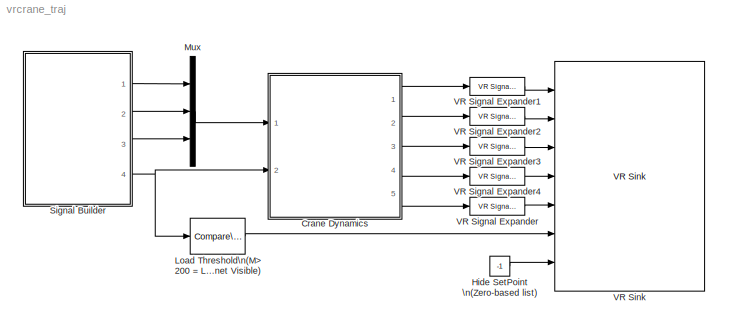
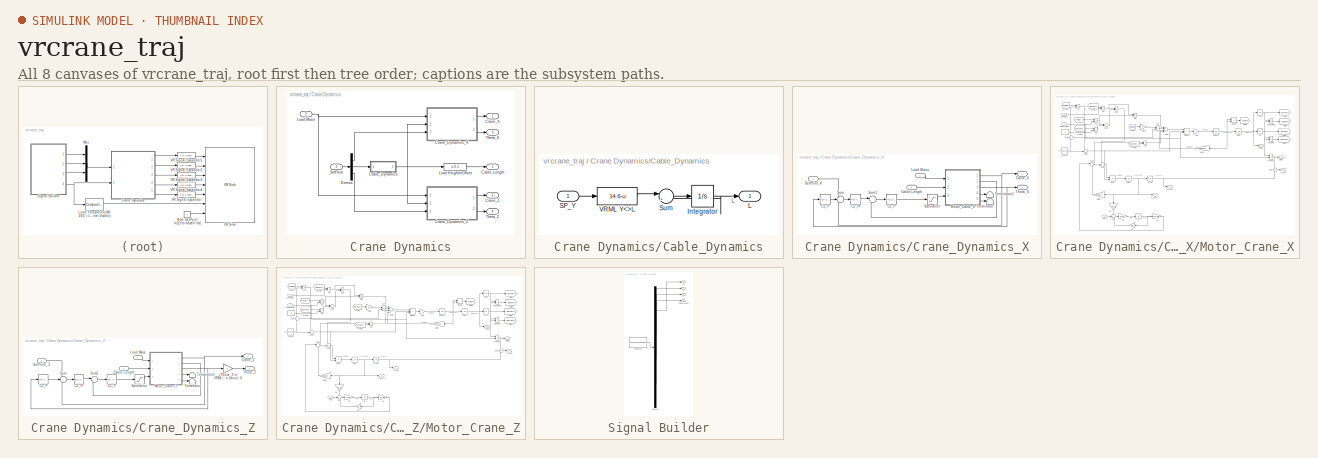
[diagram: thumbnail index - all 8 canvases of the model, root first then tree order]
MODEL vrcrane_traj
KIND model
CONFIG PostLoadFcn = Ra=2.6;\nLa=0.012;\nB=1e-1;\nKt=1e2;\nKv=3e-2;\nKg=1e-3;\nJ=0.1;\ng=9.80665;\nm_head=100;\nGamma=10;
BLOCK [SubSystem] Crane Dynamics
  EnableExecutionContextPropagation = on
  MinAlgLoopOccurrences = off
  Ports = [2, 5]
  TreatAsAtomicUnit = off
BLOCK [SubSystem] Crane Dynamics/Cable_Dynamics
  EnableExecutionContextPropagation = on
  MinAlgLoopOccurrences = off
  Ports = [1, 1]
  TreatAsAtomicUnit = off
BLOCK [Integrator] Crane Dynamics/Cable_Dynamics/Integrator
  InitialCondition = 14.6
  LimitOutput = on
  LowerSaturationLimit = 4.6
  Ports = [1, 1]
  UpperSaturationLimit = 14.6
BLOCK [Outport] Crane Dynamics/Cable_Dynamics/L
  BusOutputAsStruct = off
  IconDisplay = Port number
BLOCK [Inport] Crane Dynamics/Cable_Dynamics/SP_Y
  IconDisplay = Port number
  LatchInput = off
BLOCK [Sum] Crane Dynamics/Cable_Dynamics/Sum
  IconShape = round
  InputSameDT = off
  Inputs = |+-
  OutDataTypeMode = Inherit via internal rule
  Ports = [2, 1]
  SaturateOnIntegerOverflow = off
BLOCK [Fcn] Crane Dynamics/Cable_Dynamics/VRML Y<>L
  Expr = 14.6-u
BLOCK [Outport] Crane Dynamics/Cable_Length
  BusOutputAsStruct = off
  IconDisplay = Port number
  Port = 5
BLOCK [SubSystem] Crane Dynamics/Crane_Dynamics_X
  EnableExecutionContextPropagation = on
  MinAlgLoopOccurrences = off
  Ports = [3, 2]
  TreatAsAtomicUnit = off
BLOCK [Reference] Crane Dynamics/Crane_Dynamics_X/C1_P  REF=simulink_extras/Additional\nLinear/PID Controller
  D = 0
  I = 0
  P = -20
  Ports = [1, 1]
  ShowPortLabels = on
  SourceBlock = simulink_extras/Additional\nLinear/PID Controller
  SourceType = PID Controller
BLOCK [Reference] Crane Dynamics/Crane_Dynamics_X/C2_PI  REF=simulink_extras/Additional\nLinear/PID Controller
  D = 0
  I = 0
  P = 2.5
  Ports = [1, 1]
  ShowPortLabels = on
  SourceBlock = simulink_extras/Additional\nLinear/PID Controller
  SourceType = PID Controller
BLOCK [Reference] Crane Dynamics/Crane_Dynamics_X/C3_P  REF=simulink_extras/Additional\nLinear/PID Controller
  D = 0
  I = 0
  P = 5
  Ports = [1, 1]
  ShowPortLabels = on
  SourceBlock = simulink_extras/Additional\nLinear/PID Controller
  SourceType = PID Controller
BLOCK [Inport] Crane Dynamics/Crane_Dynamics_X/Cable Length
  IconDisplay = Port number
  LatchInput = off
  Port = 2
BLOCK [Outport] Crane Dynamics/Crane_Dynamics_X/Crane_X
  BusOutputAsStruct = off
  IconDisplay = Port number
BLOCK [Inport] Crane Dynamics/Crane_Dynamics_X/Load Mass
  IconDisplay = Port number
  LatchInput = off
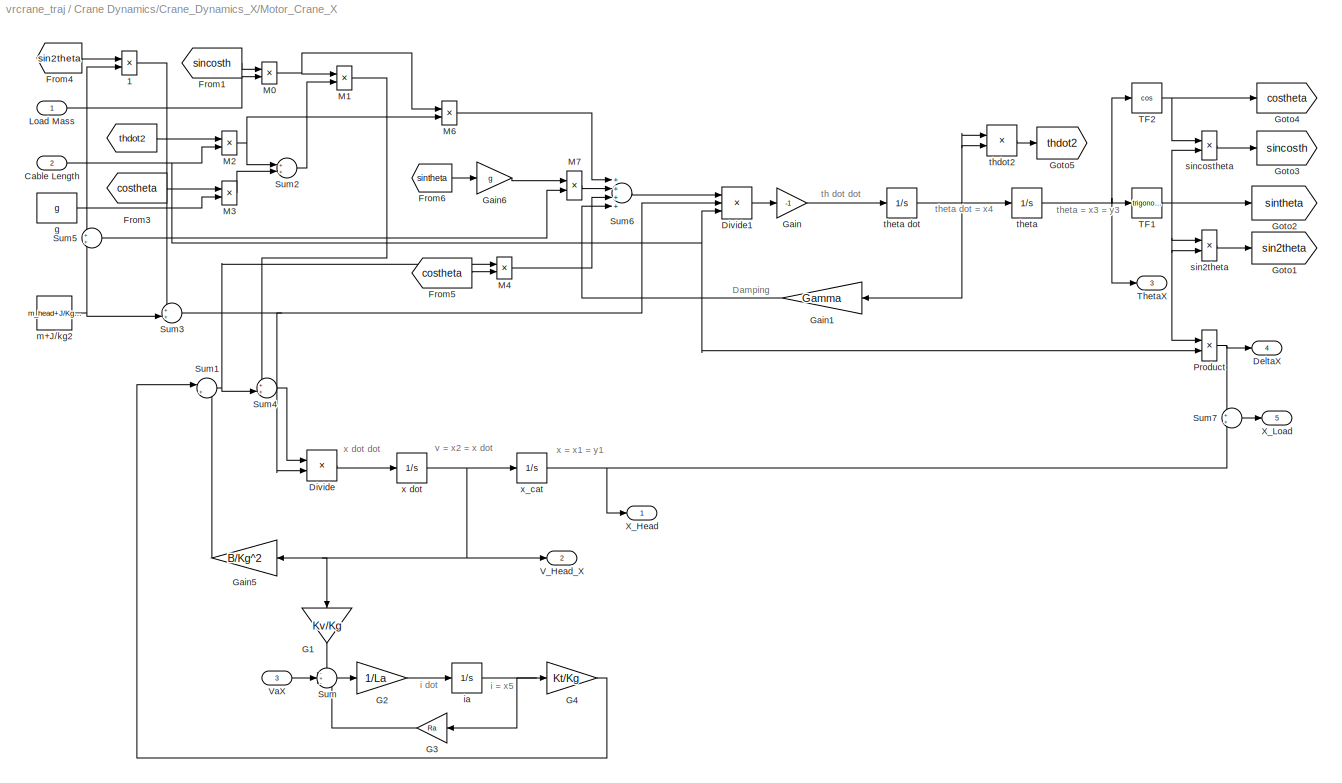
BLOCK [SubSystem] Crane Dynamics/Crane_Dynamics_X/Motor_Crane_X
  EnableExecutionContextPropagation = on
  MinAlgLoopOccurrences = off
  Ports = [3, 5]
  TreatAsAtomicUnit = off
BLOCK [From] Crane Dynamics/Crane_Dynamics_X/Motor_Crane_X/ 
  CloseFcn = tagdialog Close
  DialogController = Simulink.DDGSource
  GotoTag = thdot2
BLOCK [Product] Crane Dynamics/Crane_Dynamics_X/Motor_Crane_X/ 1
  InputSameDT = off
  Inputs = **
  OutDataTypeMode = Inherit via internal rule
  OutScaling = 2^-10
  Ports = [2, 1]
  RndMeth = Floor
  SaturateOnIntegerOverflow = off
BLOCK [Inport] Crane Dynamics/Crane_Dynamics_X/Motor_Crane_X/Cable Length
  IconDisplay = Port number
  LatchInput = off
  Port = 2
BLOCK [Outport] Crane Dynamics/Crane_Dynamics_X/Motor_Crane_X/DeltaX
  BusOutputAsStruct = off
  IconDisplay = Port number
  Port = 4
BLOCK [Product] Crane Dynamics/Crane_Dynamics_X/Motor_Crane_X/Divide
  InputSameDT = off
  Inputs = */
  OutDataTypeMode = Inherit via internal rule
  OutScaling = 2^-10
  Ports = [2, 1]
  RndMeth = Floor
  SaturateOnIntegerOverflow = off
BLOCK [Product] Crane Dynamics/Crane_Dynamics_X/Motor_Crane_X/Divide1
  InputSameDT = off
  Inputs = *//
  OutDataTypeMode = Inherit via internal rule
  OutScaling = 2^-10
  Ports = [3, 1]
  RndMeth = Floor
  SaturateOnIntegerOverflow = off
BLOCK [From] Crane Dynamics/Crane_Dynamics_X/Motor_Crane_X/From1
  CloseFcn = tagdialog Close
  DialogController = Simulink.DDGSource
  GotoTag = sincosth
BLOCK [From] Crane Dynamics/Crane_Dynamics_X/Motor_Crane_X/From3
  CloseFcn = tagdialog Close
  DialogController = Simulink.DDGSource
  GotoTag = costheta
BLOCK [From] Crane Dynamics/Crane_Dynamics_X/Motor_Crane_X/From4
  CloseFcn = tagdialog Close
  DialogController = Simulink.DDGSource
  GotoTag = sin2theta
BLOCK [From] Crane Dynamics/Crane_Dynamics_X/Motor_Crane_X/From5
  CloseFcn = tagdialog Close
  DialogController = Simulink.DDGSource
  GotoTag = costheta
BLOCK [From] Crane Dynamics/Crane_Dynamics_X/Motor_Crane_X/From6
  CloseFcn = tagdialog Close
  DialogController = Simulink.DDGSource
  GotoTag = sintheta
BLOCK [Gain] Crane Dynamics/Crane_Dynamics_X/Motor_Crane_X/G1
  Gain = Kv/Kg
  OutDataTypeMode = Inherit via internal rule
  ParameterDataTypeMode = Inherit via internal rule
  SaturateOnIntegerOverflow = off
BLOCK [Gain] Crane Dynamics/Crane_Dynamics_X/Motor_Crane_X/G2
  Gain = 1/La
  OutDataTypeMode = Inherit via internal rule
  ParameterDataTypeMode = Inherit via internal rule
  SaturateOnIntegerOverflow = off
BLOCK [Gain] Crane Dynamics/Crane_Dynamics_X/Motor_Crane_X/G3
  Gain = Ra
  OutDataTypeMode = Inherit via internal rule
  ParameterDataTypeMode = Inherit via internal rule
  SaturateOnIntegerOverflow = off
BLOCK [Gain] Crane Dynamics/Crane_Dynamics_X/Motor_Crane_X/G4
  Gain = Kt/Kg
  OutDataTypeMode = Inherit via internal rule
  ParameterDataTypeMode = Inherit via internal rule
  SaturateOnIntegerOverflow = off
BLOCK [Gain] Crane Dynamics/Crane_Dynamics_X/Motor_Crane_X/Gain
  Gain = -1
  OutDataTypeMode = Inherit via internal rule
  ParameterDataTypeMode = Inherit via internal rule
  SaturateOnIntegerOverflow = off
BLOCK [Gain] Crane Dynamics/Crane_Dynamics_X/Motor_Crane_X/Gain1
  Gain = Gamma
  OutDataTypeMode = Inherit via internal rule
  ParameterDataTypeMode = Inherit via internal rule
  SaturateOnIntegerOverflow = off
BLOCK [Gain] Crane Dynamics/Crane_Dynamics_X/Motor_Crane_X/Gain5
  Gain = B/Kg^2
  OutDataTypeMode = Inherit via internal rule
  ParameterDataTypeMode = Inherit via internal rule
  SaturateOnIntegerOverflow = off
BLOCK [Gain] Crane Dynamics/Crane_Dynamics_X/Motor_Crane_X/Gain6
  Gain = g
  OutDataTypeMode = Inherit via internal rule
  ParameterDataTypeMode = Inherit via internal rule
  SaturateOnIntegerOverflow = off
BLOCK [Goto] Crane Dynamics/Crane_Dynamics_X/Motor_Crane_X/Goto1
  DialogController = Simulink.DDGSource
  GotoTag = sin2theta
  TagVisibility = local
BLOCK [Goto] Crane Dynamics/Crane_Dynamics_X/Motor_Crane_X/Goto2
  DialogController = Simulink.DDGSource
  GotoTag = sintheta
  TagVisibility = local
BLOCK [Goto] Crane Dynamics/Crane_Dynamics_X/Motor_Crane_X/Goto3
  DialogController = Simulink.DDGSource
  GotoTag = sincosth
  TagVisibility = local
BLOCK [Goto] Crane Dynamics/Crane_Dynamics_X/Motor_Crane_X/Goto4
  DialogController = Simulink.DDGSource
  GotoTag = costheta
  TagVisibility = local
BLOCK [Goto] Crane Dynamics/Crane_Dynamics_X/Motor_Crane_X/Goto5
  DialogController = Simulink.DDGSource
  GotoTag = thdot2
  TagVisibility = local
BLOCK [Inport] Crane Dynamics/Crane_Dynamics_X/Motor_Crane_X/Load Mass
  IconDisplay = Port number
  LatchInput = off
BLOCK [Product] Crane Dynamics/Crane_Dynamics_X/Motor_Crane_X/M0
  InputSameDT = off
  Inputs = **
  OutDataTypeMode = Inherit via internal rule
  OutScaling = 2^-10
  Ports = [2, 1]
  RndMeth = Floor
  SaturateOnIntegerOverflow = off
BLOCK [Product] Crane Dynamics/Crane_Dynamics_X/Motor_Crane_X/M1
  InputSameDT = off
  Inputs = **
  OutDataTypeMode = Inherit via internal rule
  OutScaling = 2^-10
  Ports = [2, 1]
  RndMeth = Floor
  SaturateOnIntegerOverflow = off
BLOCK [Product] Crane Dynamics/Crane_Dynamics_X/Motor_Crane_X/M2
  InputSameDT = off
  Inputs = **
  OutDataTypeMode = Inherit via internal rule
  OutScaling = 2^-10
  Ports = [2, 1]
  RndMeth = Floor
  SaturateOnIntegerOverflow = off
BLOCK [Product] Crane Dynamics/Crane_Dynamics_X/Motor_Crane_X/M3
  InputSameDT = off
  Inputs = **
  OutDataTypeMode = Inherit via internal rule
  OutScaling = 2^-10
  Ports = [2, 1]
  RndMeth = Floor
  SaturateOnIntegerOverflow = off
BLOCK [Product] Crane Dynamics/Crane_Dynamics_X/Motor_Crane_X/M4
  InputSameDT = off
  Inputs = **
  OutDataTypeMode = Inherit via internal rule
  OutScaling = 2^-10
  Ports = [2, 1]
  RndMeth = Floor
  SaturateOnIntegerOverflow = off
BLOCK [Product] Crane Dynamics/Crane_Dynamics_X/Motor_Crane_X/M6
  InputSameDT = off
  Inputs = **
  OutDataTypeMode = Inherit via internal rule
  OutScaling = 2^-10
  Ports = [2, 1]
  RndMeth = Floor
  SaturateOnIntegerOverflow = off
BLOCK [Product] Crane Dynamics/Crane_Dynamics_X/Motor_Crane_X/M7
  InputSameDT = off
  Inputs = **
  OutDataTypeMode = Inherit via internal rule
  OutScaling = 2^-10
  Ports = [2, 1]
  RndMeth = Floor
  SaturateOnIntegerOverflow = off
BLOCK [Product] Crane Dynamics/Crane_Dynamics_X/Motor_Crane_X/Product
  InputSameDT = off
  Ports = [2, 1]
  RndMeth = Floor
BLOCK [Sum] Crane Dynamics/Crane_Dynamics_X/Motor_Crane_X/Sum
  IconShape = round
  InputSameDT = off
  Inputs = -+-
  OutDataTypeMode = Inherit via internal rule
  Ports = [3, 1]
  SaturateOnIntegerOverflow = off
BLOCK [Sum] Crane Dynamics/Crane_Dynamics_X/Motor_Crane_X/Sum1
  IconShape = round
  InputSameDT = off
  Inputs = |+-
  OutDataTypeMode = Inherit via internal rule
  Ports = [2, 1]
  SaturateOnIntegerOverflow = off
BLOCK [Sum] Crane Dynamics/Crane_Dynamics_X/Motor_Crane_X/Sum2
  IconShape = round
  InputSameDT = off
  OutDataTypeMode = Inherit via internal rule
  Ports = [2, 1]
  SaturateOnIntegerOverflow = off
BLOCK [Sum] Crane Dynamics/Crane_Dynamics_X/Motor_Crane_X/Sum3
  IconShape = round
  InputSameDT = off
  Inputs = ++|
  OutDataTypeMode = Inherit via internal rule
  Ports = [2, 1]
  SaturateOnIntegerOverflow = off
BLOCK [Sum] Crane Dynamics/Crane_Dynamics_X/Motor_Crane_X/Sum4
  IconShape = round
  InputSameDT = off
  Inputs = ++|
  OutDataTypeMode = Inherit via internal rule
  Ports = [2, 1]
  SaturateOnIntegerOverflow = off
BLOCK [Sum] Crane Dynamics/Crane_Dynamics_X/Motor_Crane_X/Sum5
  IconShape = round
  InputSameDT = off
  OutDataTypeMode = Inherit via internal rule
  Ports = [2, 1]
  SaturateOnIntegerOverflow = off
BLOCK [Sum] Crane Dynamics/Crane_Dynamics_X/Motor_Crane_X/Sum6
  InputSameDT = off
  Inputs = ++++
  OutDataTypeMode = Inherit via internal rule
  Ports = [4, 1]
  SaturateOnIntegerOverflow = off
BLOCK [Sum] Crane Dynamics/Crane_Dynamics_X/Motor_Crane_X/Sum7
  IconShape = round
  InputSameDT = off
  OutDataTypeMode = Inherit via internal rule
  Ports = [2, 1]
  SaturateOnIntegerOverflow = off
BLOCK [Trigonometry] Crane Dynamics/Crane_Dynamics_X/Motor_Crane_X/TF1
  Ports = [1, 1]
BLOCK [Trigonometry] Crane Dynamics/Crane_Dynamics_X/Motor_Crane_X/TF2
  Operator = cos
  Ports = [1, 1]
BLOCK [Outport] Crane Dynamics/Crane_Dynamics_X/Motor_Crane_X/ThetaX
  BusOutputAsStruct = off
  IconDisplay = Port number
  Port = 3
BLOCK [Outport] Crane Dynamics/Crane_Dynamics_X/Motor_Crane_X/V_Head_X
  BusOutputAsStruct = off
  IconDisplay = Port number
  Port = 2
BLOCK [Inport] Crane Dynamics/Crane_Dynamics_X/Motor_Crane_X/VaX
  IconDisplay = Port number
  LatchInput = off
  Port = 3
BLOCK [Outport] Crane Dynamics/Crane_Dynamics_X/Motor_Crane_X/X_Head
  BusOutputAsStruct = off
  IconDisplay = Port number
BLOCK [Outport] Crane Dynamics/Crane_Dynamics_X/Motor_Crane_X/X_Load
  BusOutputAsStruct = off
  IconDisplay = Port number
  Port = 5
BLOCK [Constant] Crane Dynamics/Crane_Dynamics_X/Motor_Crane_X/g
  Value = g
BLOCK [Integrator] Crane Dynamics/Crane_Dynamics_X/Motor_Crane_X/ia
  Ports = [1, 1]
BLOCK [Constant] Crane Dynamics/Crane_Dynamics_X/Motor_Crane_X/m+J//kg2
  Value = m_head+J/Kg^2
BLOCK [Product] Crane Dynamics/Crane_Dynamics_X/Motor_Crane_X/sin2theta
  InputSameDT = off
  Inputs = **
  OutDataTypeMode = Inherit via internal rule
  OutScaling = 2^-10
  Ports = [2, 1]
  RndMeth = Floor
  SaturateOnIntegerOverflow = off
BLOCK [Product] Crane Dynamics/Crane_Dynamics_X/Motor_Crane_X/sincostheta
  InputSameDT = off
  Inputs = **
  OutDataTypeMode = Inherit via internal rule
  OutScaling = 2^-10
  Ports = [2, 1]
  RndMeth = Floor
  SaturateOnIntegerOverflow = off
BLOCK [Product] Crane Dynamics/Crane_Dynamics_X/Motor_Crane_X/thdot2
  InputSameDT = off
  Inputs = **
  OutDataTypeMode = Inherit via internal rule
  OutScaling = 2^-10
  Ports = [2, 1]
  RndMeth = Floor
  SaturateOnIntegerOverflow = off
BLOCK [Integrator] Crane Dynamics/Crane_Dynamics_X/Motor_Crane_X/theta
  Ports = [1, 1]
BLOCK [Integrator] Crane Dynamics/Crane_Dynamics_X/Motor_Crane_X/theta dot
  Ports = [1, 1]
BLOCK [Integrator] Crane Dynamics/Crane_Dynamics_X/Motor_Crane_X/x dot
  Ports = [1, 1]
BLOCK [Integrator] Crane Dynamics/Crane_Dynamics_X/Motor_Crane_X/x_cat
  Ports = [1, 1]
BLOCK [Saturate] Crane Dynamics/Crane_Dynamics_X/Saturation
  LowerLimit = -50
  UpperLimit = 50
BLOCK [Inport] Crane Dynamics/Crane_Dynamics_X/SetPoint_X
  IconDisplay = Port number
  LatchInput = off
  Port = 3
BLOCK [Sum] Crane Dynamics/Crane_Dynamics_X/Sum
  IconShape = round
  Inputs = +--
  Ports = [3, 1]
BLOCK [Sum] Crane Dynamics/Crane_Dynamics_X/Sum1
  IconShape = round
  Inputs = |+-
  Ports = [2, 1]
BLOCK [Terminator] Crane Dynamics/Crane_Dynamics_X/Terminator
BLOCK [Terminator] Crane Dynamics/Crane_Dynamics_X/Terminator1
BLOCK [Outport] Crane Dynamics/Crane_Dynamics_X/Theta_X
  BusOutputAsStruct = off
  IconDisplay = Port number
  Port = 2
BLOCK [SubSystem] Crane Dynamics/Crane_Dynamics_Z
  EnableExecutionContextPropagation = on
  MinAlgLoopOccurrences = off
  Ports = [3, 2]
  TreatAsAtomicUnit = off
BLOCK [Gain] Crane Dynamics/Crane_Dynamics_Z/+Theta_Z in VRML\nrepresented by\nrotation about -X
  Gain = -1
  OutDataTypeMode = Inherit via internal rule
  ParameterDataTypeMode = Inherit via internal rule
  SaturateOnIntegerOverflow = off
BLOCK [Reference] Crane Dynamics/Crane_Dynamics_Z/C1_P  REF=simulink_extras/Additional\nLinear/PID Controller
  D = 0
  I = 0
  P = -20
  Ports = [1, 1]
  ShowPortLabels = on
  SourceBlock = simulink_extras/Additional\nLinear/PID Controller
  SourceType = PID Controller
BLOCK [Reference] Crane Dynamics/Crane_Dynamics_Z/C2_PI  REF=simulink_extras/Additional\nLinear/PID Controller
  D = 0
  I = 0
  P = 2.5
  Ports = [1, 1]
  ShowPortLabels = on
  SourceBlock = simulink_extras/Additional\nLinear/PID Controller
  SourceType = PID Controller
BLOCK [Reference] Crane Dynamics/Crane_Dynamics_Z/C3_P  REF=simulink_extras/Additional\nLinear/PID Controller
  D = 0
  I = 0
  P = 5
  Ports = [1, 1]
  ShowPortLabels = on
  SourceBlock = simulink_extras/Additional\nLinear/PID Controller
  SourceType = PID Controller
BLOCK [Inport] Crane Dynamics/Crane_Dynamics_Z/Cable Length
  IconDisplay = Port number
  LatchInput = off
  Port = 2
BLOCK [Outport] Crane Dynamics/Crane_Dynamics_Z/Crane_Z
  BusOutputAsStruct = off
  IconDisplay = Port number
BLOCK [Inport] Crane Dynamics/Crane_Dynamics_Z/Load Mass
  IconDisplay = Port number
  LatchInput = off
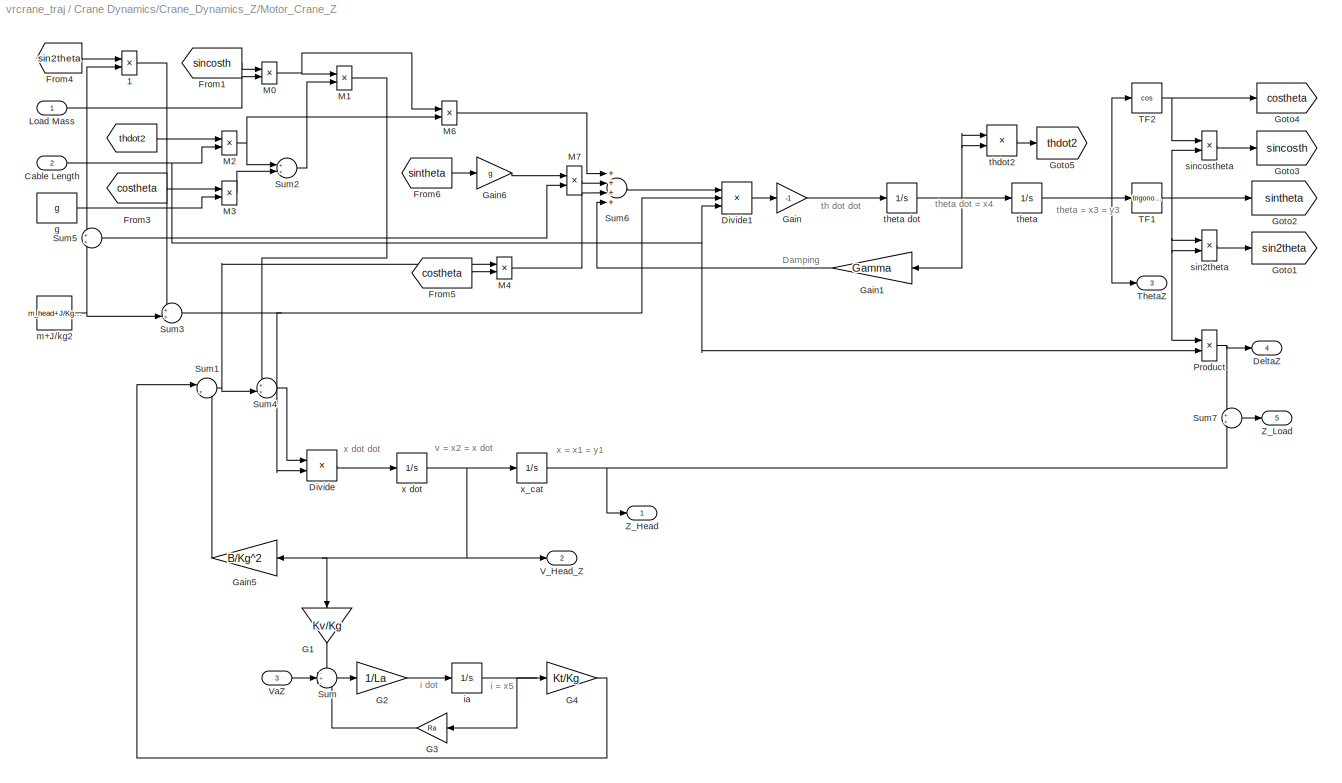
BLOCK [SubSystem] Crane Dynamics/Crane_Dynamics_Z/Motor_Crane_Z
  EnableExecutionContextPropagation = on
  MinAlgLoopOccurrences = off
  Ports = [3, 5]
  TreatAsAtomicUnit = off
BLOCK [From] Crane Dynamics/Crane_Dynamics_Z/Motor_Crane_Z/ 
  CloseFcn = tagdialog Close
  DialogController = Simulink.DDGSource
  GotoTag = thdot2
BLOCK [Product] Crane Dynamics/Crane_Dynamics_Z/Motor_Crane_Z/ 1
  InputSameDT = off
  Inputs = **
  OutDataTypeMode = Inherit via internal rule
  OutScaling = 2^-10
  Ports = [2, 1]
  RndMeth = Floor
  SaturateOnIntegerOverflow = off
BLOCK [Inport] Crane Dynamics/Crane_Dynamics_Z/Motor_Crane_Z/Cable Length
  IconDisplay = Port number
  LatchInput = off
  Port = 2
BLOCK [Outport] Crane Dynamics/Crane_Dynamics_Z/Motor_Crane_Z/DeltaZ
  BusOutputAsStruct = off
  IconDisplay = Port number
  Port = 4
BLOCK [Product] Crane Dynamics/Crane_Dynamics_Z/Motor_Crane_Z/Divide
  InputSameDT = off
  Inputs = */
  OutDataTypeMode = Inherit via internal rule
  OutScaling = 2^-10
  Ports = [2, 1]
  RndMeth = Floor
  SaturateOnIntegerOverflow = off
BLOCK [Product] Crane Dynamics/Crane_Dynamics_Z/Motor_Crane_Z/Divide1
  InputSameDT = off
  Inputs = *//
  OutDataTypeMode = Inherit via internal rule
  OutScaling = 2^-10
  Ports = [3, 1]
  RndMeth = Floor
  SaturateOnIntegerOverflow = off
BLOCK [From] Crane Dynamics/Crane_Dynamics_Z/Motor_Crane_Z/From1
  CloseFcn = tagdialog Close
  DialogController = Simulink.DDGSource
  GotoTag = sincosth
BLOCK [From] Crane Dynamics/Crane_Dynamics_Z/Motor_Crane_Z/From3
  CloseFcn = tagdialog Close
  DialogController = Simulink.DDGSource
  GotoTag = costheta
BLOCK [From] Crane Dynamics/Crane_Dynamics_Z/Motor_Crane_Z/From4
  CloseFcn = tagdialog Close
  DialogController = Simulink.DDGSource
  GotoTag = sin2theta
BLOCK [From] Crane Dynamics/Crane_Dynamics_Z/Motor_Crane_Z/From5
  CloseFcn = tagdialog Close
  DialogController = Simulink.DDGSource
  GotoTag = costheta
BLOCK [From] Crane Dynamics/Crane_Dynamics_Z/Motor_Crane_Z/From6
  CloseFcn = tagdialog Close
  DialogController = Simulink.DDGSource
  GotoTag = sintheta
BLOCK [Gain] Crane Dynamics/Crane_Dynamics_Z/Motor_Crane_Z/G1
  Gain = Kv/Kg
  OutDataTypeMode = Inherit via internal rule
  ParameterDataTypeMode = Inherit via internal rule
  SaturateOnIntegerOverflow = off
BLOCK [Gain] Crane Dynamics/Crane_Dynamics_Z/Motor_Crane_Z/G2
  Gain = 1/La
  OutDataTypeMode = Inherit via internal rule
  ParameterDataTypeMode = Inherit via internal rule
  SaturateOnIntegerOverflow = off
BLOCK [Gain] Crane Dynamics/Crane_Dynamics_Z/Motor_Crane_Z/G3
  Gain = Ra
  OutDataTypeMode = Inherit via internal rule
  ParameterDataTypeMode = Inherit via internal rule
  SaturateOnIntegerOverflow = off
BLOCK [Gain] Crane Dynamics/Crane_Dynamics_Z/Motor_Crane_Z/G4
  Gain = Kt/Kg
  OutDataTypeMode = Inherit via internal rule
  ParameterDataTypeMode = Inherit via internal rule
  SaturateOnIntegerOverflow = off
BLOCK [Gain] Crane Dynamics/Crane_Dynamics_Z/Motor_Crane_Z/Gain
  Gain = -1
  OutDataTypeMode = Inherit via internal rule
  ParameterDataTypeMode = Inherit via internal rule
  SaturateOnIntegerOverflow = off
BLOCK [Gain] Crane Dynamics/Crane_Dynamics_Z/Motor_Crane_Z/Gain1
  Gain = Gamma
  OutDataTypeMode = Inherit via internal rule
  ParameterDataTypeMode = Inherit via internal rule
  SaturateOnIntegerOverflow = off
BLOCK [Gain] Crane Dynamics/Crane_Dynamics_Z/Motor_Crane_Z/Gain5
  Gain = B/Kg^2
  OutDataTypeMode = Inherit via internal rule
  ParameterDataTypeMode = Inherit via internal rule
  SaturateOnIntegerOverflow = off
BLOCK [Gain] Crane Dynamics/Crane_Dynamics_Z/Motor_Crane_Z/Gain6
  Gain = g
  OutDataTypeMode = Inherit via internal rule
  ParameterDataTypeMode = Inherit via internal rule
  SaturateOnIntegerOverflow = off
BLOCK [Goto] Crane Dynamics/Crane_Dynamics_Z/Motor_Crane_Z/Goto1
  DialogController = Simulink.DDGSource
  GotoTag = sin2theta
  TagVisibility = local
BLOCK [Goto] Crane Dynamics/Crane_Dynamics_Z/Motor_Crane_Z/Goto2
  DialogController = Simulink.DDGSource
  GotoTag = sintheta
  TagVisibility = local
BLOCK [Goto] Crane Dynamics/Crane_Dynamics_Z/Motor_Crane_Z/Goto3
  DialogController = Simulink.DDGSource
  GotoTag = sincosth
  TagVisibility = local
BLOCK [Goto] Crane Dynamics/Crane_Dynamics_Z/Motor_Crane_Z/Goto4
  DialogController = Simulink.DDGSource
  GotoTag = costheta
  TagVisibility = local
BLOCK [Goto] Crane Dynamics/Crane_Dynamics_Z/Motor_Crane_Z/Goto5
  DialogController = Simulink.DDGSource
  GotoTag = thdot2
  TagVisibility = local
BLOCK [Inport] Crane Dynamics/Crane_Dynamics_Z/Motor_Crane_Z/Load Mass
  IconDisplay = Port number
  LatchInput = off
BLOCK [Product] Crane Dynamics/Crane_Dynamics_Z/Motor_Crane_Z/M0
  InputSameDT = off
  Inputs = **
  OutDataTypeMode = Inherit via internal rule
  OutScaling = 2^-10
  Ports = [2, 1]
  RndMeth = Floor
  SaturateOnIntegerOverflow = off
BLOCK [Product] Crane Dynamics/Crane_Dynamics_Z/Motor_Crane_Z/M1
  InputSameDT = off
  Inputs = **
  OutDataTypeMode = Inherit via internal rule
  OutScaling = 2^-10
  Ports = [2, 1]
  RndMeth = Floor
  SaturateOnIntegerOverflow = off
BLOCK [Product] Crane Dynamics/Crane_Dynamics_Z/Motor_Crane_Z/M2
  InputSameDT = off
  Inputs = **
  OutDataTypeMode = Inherit via internal rule
  OutScaling = 2^-10
  Ports = [2, 1]
  RndMeth = Floor
  SaturateOnIntegerOverflow = off
BLOCK [Product] Crane Dynamics/Crane_Dynamics_Z/Motor_Crane_Z/M3
  InputSameDT = off
  Inputs = **
  OutDataTypeMode = Inherit via internal rule
  OutScaling = 2^-10
  Ports = [2, 1]
  RndMeth = Floor
  SaturateOnIntegerOverflow = off
BLOCK [Product] Crane Dynamics/Crane_Dynamics_Z/Motor_Crane_Z/M4
  InputSameDT = off
  Inputs = **
  OutDataTypeMode = Inherit via internal rule
  OutScaling = 2^-10
  Ports = [2, 1]
  RndMeth = Floor
  SaturateOnIntegerOverflow = off
BLOCK [Product] Crane Dynamics/Crane_Dynamics_Z/Motor_Crane_Z/M6
  InputSameDT = off
  Inputs = **
  OutDataTypeMode = Inherit via internal rule
  OutScaling = 2^-10
  Ports = [2, 1]
  RndMeth = Floor
  SaturateOnIntegerOverflow = off
BLOCK [Product] Crane Dynamics/Crane_Dynamics_Z/Motor_Crane_Z/M7
  InputSameDT = off
  Inputs = **
  OutDataTypeMode = Inherit via internal rule
  OutScaling = 2^-10
  Ports = [2, 1]
  RndMeth = Floor
  SaturateOnIntegerOverflow = off
BLOCK [Product] Crane Dynamics/Crane_Dynamics_Z/Motor_Crane_Z/Product
  InputSameDT = off
  Ports = [2, 1]
  RndMeth = Floor
BLOCK [Sum] Crane Dynamics/Crane_Dynamics_Z/Motor_Crane_Z/Sum
  IconShape = round
  InputSameDT = off
  Inputs = -+-
  OutDataTypeMode = Inherit via internal rule
  Ports = [3, 1]
  SaturateOnIntegerOverflow = off
BLOCK [Sum] Crane Dynamics/Crane_Dynamics_Z/Motor_Crane_Z/Sum1
  IconShape = round
  InputSameDT = off
  Inputs = |+-
  OutDataTypeMode = Inherit via internal rule
  Ports = [2, 1]
  SaturateOnIntegerOverflow = off
BLOCK [Sum] Crane Dynamics/Crane_Dynamics_Z/Motor_Crane_Z/Sum2
  IconShape = round
  InputSameDT = off
  OutDataTypeMode = Inherit via internal rule
  Ports = [2, 1]
  SaturateOnIntegerOverflow = off
BLOCK [Sum] Crane Dynamics/Crane_Dynamics_Z/Motor_Crane_Z/Sum3
  IconShape = round
  InputSameDT = off
  Inputs = ++|
  OutDataTypeMode = Inherit via internal rule
  Ports = [2, 1]
  SaturateOnIntegerOverflow = off
BLOCK [Sum] Crane Dynamics/Crane_Dynamics_Z/Motor_Crane_Z/Sum4
  IconShape = round
  InputSameDT = off
  Inputs = ++|
  OutDataTypeMode = Inherit via internal rule
  Ports = [2, 1]
  SaturateOnIntegerOverflow = off
BLOCK [Sum] Crane Dynamics/Crane_Dynamics_Z/Motor_Crane_Z/Sum5
  IconShape = round
  InputSameDT = off
  OutDataTypeMode = Inherit via internal rule
  Ports = [2, 1]
  SaturateOnIntegerOverflow = off
BLOCK [Sum] Crane Dynamics/Crane_Dynamics_Z/Motor_Crane_Z/Sum6
  InputSameDT = off
  Inputs = ++++
  OutDataTypeMode = Inherit via internal rule
  Ports = [4, 1]
  SaturateOnIntegerOverflow = off
BLOCK [Sum] Crane Dynamics/Crane_Dynamics_Z/Motor_Crane_Z/Sum7
  IconShape = round
  InputSameDT = off
  OutDataTypeMode = Inherit via internal rule
  Ports = [2, 1]
  SaturateOnIntegerOverflow = off
BLOCK [Trigonometry] Crane Dynamics/Crane_Dynamics_Z/Motor_Crane_Z/TF1
  Ports = [1, 1]
BLOCK [Trigonometry] Crane Dynamics/Crane_Dynamics_Z/Motor_Crane_Z/TF2
  Operator = cos
  Ports = [1, 1]
BLOCK [Outport] Crane Dynamics/Crane_Dynamics_Z/Motor_Crane_Z/ThetaZ
  BusOutputAsStruct = off
  IconDisplay = Port number
  Port = 3
BLOCK [Outport] Crane Dynamics/Crane_Dynamics_Z/Motor_Crane_Z/V_Head_Z
  BusOutputAsStruct = off
  IconDisplay = Port number
  Port = 2
BLOCK [Inport] Crane Dynamics/Crane_Dynamics_Z/Motor_Crane_Z/VaZ
  IconDisplay = Port number
  LatchInput = off
  Port = 3
BLOCK [Outport] Crane Dynamics/Crane_Dynamics_Z/Motor_Crane_Z/Z_Head
  BusOutputAsStruct = off
  IconDisplay = Port number
BLOCK [Outport] Crane Dynamics/Crane_Dynamics_Z/Motor_Crane_Z/Z_Load
  BusOutputAsStruct = off
  IconDisplay = Port number
  Port = 5
BLOCK [Constant] Crane Dynamics/Crane_Dynamics_Z/Motor_Crane_Z/g
  Value = g
BLOCK [Integrator] Crane Dynamics/Crane_Dynamics_Z/Motor_Crane_Z/ia
  Ports = [1, 1]
BLOCK [Constant] Crane Dynamics/Crane_Dynamics_Z/Motor_Crane_Z/m+J//kg2
  Value = m_head+J/Kg^2
BLOCK [Product] Crane Dynamics/Crane_Dynamics_Z/Motor_Crane_Z/sin2theta
  InputSameDT = off
  Inputs = **
  OutDataTypeMode = Inherit via internal rule
  OutScaling = 2^-10
  Ports = [2, 1]
  RndMeth = Floor
  SaturateOnIntegerOverflow = off
BLOCK [Product] Crane Dynamics/Crane_Dynamics_Z/Motor_Crane_Z/sincostheta
  InputSameDT = off
  Inputs = **
  OutDataTypeMode = Inherit via internal rule
  OutScaling = 2^-10
  Ports = [2, 1]
  RndMeth = Floor
  SaturateOnIntegerOverflow = off
BLOCK [Product] Crane Dynamics/Crane_Dynamics_Z/Motor_Crane_Z/thdot2
  InputSameDT = off
  Inputs = **
  OutDataTypeMode = Inherit via internal rule
  OutScaling = 2^-10
  Ports = [2, 1]
  RndMeth = Floor
  SaturateOnIntegerOverflow = off
BLOCK [Integrator] Crane Dynamics/Crane_Dynamics_Z/Motor_Crane_Z/theta
  Ports = [1, 1]
BLOCK [Integrator] Crane Dynamics/Crane_Dynamics_Z/Motor_Crane_Z/theta dot
  Ports = [1, 1]
BLOCK [Integrator] Crane Dynamics/Crane_Dynamics_Z/Motor_Crane_Z/x dot
  Ports = [1, 1]
BLOCK [Integrator] Crane Dynamics/Crane_Dynamics_Z/Motor_Crane_Z/x_cat
  Ports = [1, 1]
BLOCK [Saturate] Crane Dynamics/Crane_Dynamics_Z/Saturation
  LowerLimit = -50
  UpperLimit = 50
BLOCK [Inport] Crane Dynamics/Crane_Dynamics_Z/SetPoint_Z
  IconDisplay = Port number
  LatchInput = off
  Port = 3
BLOCK [Sum] Crane Dynamics/Crane_Dynamics_Z/Sum
  IconShape = round
  Inputs = +--
  Ports = [3, 1]
BLOCK [Sum] Crane Dynamics/Crane_Dynamics_Z/Sum1
  IconShape = round
  Inputs = |+-
  Ports = [2, 1]
BLOCK [Terminator] Crane Dynamics/Crane_Dynamics_Z/Terminator
BLOCK [Terminator] Crane Dynamics/Crane_Dynamics_Z/Terminator1
BLOCK [Outport] Crane Dynamics/Crane_Dynamics_Z/Theta_Z
  BusOutputAsStruct = off
  IconDisplay = Port number
  Port = 2
BLOCK [Outport] Crane Dynamics/Crane_X
  BusOutputAsStruct = off
  IconDisplay = Port number
BLOCK [Outport] Crane Dynamics/Crane_Z
  BusOutputAsStruct = off
  IconDisplay = Port number
  Port = 2
BLOCK [Demux] Crane Dynamics/Demux
  DisplayOption = bar
  Outputs = 3
  Ports = [1, 3]
BLOCK [Fcn] Crane Dynamics/Load Height\nOffset 
  Expr = u-0.5
BLOCK [Inport] Crane Dynamics/Load Mass
  IconDisplay = Port number
  LatchInput = off
  Port = 2
BLOCK [Inport] Crane Dynamics/SetPoint
  IconDisplay = Port number
  LatchInput = off
BLOCK [Outport] Crane Dynamics/Theta_X
  BusOutputAsStruct = off
  IconDisplay = Port number
  Port = 3
BLOCK [Outport] Crane Dynamics/Theta_Z
  BusOutputAsStruct = off
  IconDisplay = Port number
  Port = 4
BLOCK [Constant] Hide SetPoint \n(Zero-based list)
  Value = -1
BLOCK [Reference] Load Threshold\n(M>200 = Load on Magnet Visible)  REF=simulink/Logic and Bit\nOperations/Compare\nTo Constant
  LogicOutDataTypeMode = uint8
  Ports = [1, 1]
  ShowPortLabels = on
  SourceBlock = simulink/Logic and Bit\nOperations/Compare\nTo Constant
  SourceType = Compare To Constant
  const = 200
  relop = >
BLOCK [Mux] Mux
  DisplayOption = bar
  Inputs = 3
  Ports = [3, 1]
BLOCK [SubSystem] Signal Builder
  ClipboardFcn = sigbuilder_block('clipboard');
  CloseFcn = sigbuilder_block('close');
  CopyFcn = sigbuilder_block('copy');
  DeleteFcn = sigbuilder_block('delete');
  EnableExecutionContextPropagation = on
  LoadFcn = sigbuilder_block('load');
  MaskDescription = Sigbuilder GUI
  MaskDisplay = plot(0,0,100,100,[10,10,40,40,10],[80,20,20,80,80],[40,10],[50,50], [40,27,10],[65,72,56],[40,25,25,10],[28,28,43,43]);
  MaskIconFrame = on
  MaskIconOpaque = off
  MaskIconRotate = port
  MaskIconUnits = autoscale
  MaskInitialization = if ~strcmp(get_param(bdroot(gcb),'SimulationStatus'),'stopped') tuvar = sigbuilder_block('maskInit'); end
  MaskType = Sigbuilder block
  MinAlgLoopOccurrences = off
  ModelCloseFcn = sigbuilder_block('modelClose');
  NameChangeFcn = sigbuilder_block('namechange');
  OpenFcn = sigbuilder_block('open',[111.75 57.75 534.75 459.75 ]);
  Ports = [0, 4]
  PreSaveFcn = sigbuilder_block('preSave');
  StartFcn = sigbuilder_block('start');
  StopFcn = sigbuilder_block('stop');
  Tag = STV Subsys
  TreatAsAtomicUnit = off
BLOCK [Demux] Signal Builder/Demux
  Ports = [1, 4]
  Tag = STV Demux
BLOCK [FromWorkspace] Signal Builder/FromWs
  OutputAfterFinalValue = Holding final value
  SampleTime = 0
  SigBuilderData = DataTag0
  Tag = STV FromWs
  VariableName = tuvar
  VnvData = DataTag1
BLOCK [Outport] Signal Builder/Load Mass
  BusOutputAsStruct = off
  IconDisplay = Port number
  Port = 4
  Tag = STV Outport
BLOCK [Outport] Signal Builder/X
  BusOutputAsStruct = off
  IconDisplay = Port number
  Tag = STV Outport
BLOCK [Outport] Signal Builder/Y
  BusOutputAsStruct = off
  IconDisplay = Port number
  Port = 2
  Tag = STV Outport
BLOCK [Outport] Signal Builder/Z
  BusOutputAsStruct = off
  IconDisplay = Port number
  Port = 3
  Tag = STV Outport
BLOCK [Reference] VR Signal Expander  REF=vrlib/VR Signal Expander
  Ports = [1, 1]
  ShowPortLabels = on
  SourceBlock = vrlib/VR Signal Expander
  SourceType = VR Signal Expander
  outidx = [2]
  outwidth = 3
BLOCK [Reference] VR Signal Expander1  REF=vrlib/VR Signal Expander
  Ports = [1, 1]
  ShowPortLabels = on
  SourceBlock = vrlib/VR Signal Expander
  SourceType = VR Signal Expander
  outidx = [1]
  outwidth = 3
BLOCK [Reference] VR Signal Expander2  REF=vrlib/VR Signal Expander
  Ports = [1, 1]
  ShowPortLabels = on
  SourceBlock = vrlib/VR Signal Expander
  SourceType = VR Signal Expander
  outidx = [3]
  outwidth = 3
BLOCK [Reference] VR Signal Expander3  REF=vrlib/VR Signal Expander
  Ports = [1, 1]
  ShowPortLabels = on
  SourceBlock = vrlib/VR Signal Expander
  SourceType = VR Signal Expander
  outidx = [4]
  outwidth = 4
BLOCK [Reference] VR Signal Expander4  REF=vrlib/VR Signal Expander
  Ports = [1, 1]
  ShowPortLabels = on
  SourceBlock = vrlib/VR Signal Expander
  SourceType = VR Signal Expander
  outidx = [4]
  outwidth = 4
BLOCK [Reference] VR Sink  REF=vrlib/VR Sink
  AutoView = on
  FieldsWritten = Crane_X.translation.3.1.double#Crane_Z.translation.3.1.double#Parts_Rot_ZAxis.rotation.4.1.double#Parts_Rot_XAxis.rotation.4.1.double#CableUnit.scale.3.1.double#Load_Switch.whichChoice.1.1.double#SP_Highlight.whichChoice.1.1.double
  FigureProperties = {'Position', 'Name', 'Viewpoint', 'CameraBound', 'CameraDirection', 'CameraPosition', 'CameraUpVector', 'ZoomFactor', 'Antialiasing', 'Headlight', 'Lighting', 'NavPanel', 'StatusBar', 'Textures', 'Transparency', 'Wireframe', 'NavZones', 'NavMode', 'NavSpeed', 'Record2DCompressMethod', 'Record2DCompressQuality', 'Record2D', 'Record2DFcn', 'Record2DFileName', 'Record2DStartFcn', 'Record2DStopFcn'; [...<+658ch>
  Ports = [7]
  RemoteChange = off
  RemoteView = off
  SampleTime = 0.1
  SourceBlock = vrlib/VR Sink
  SourceType = Virtual Reality Sink
  ViewEnable = on
  WorldDescription = VR Portal Crane
  WorldFileName = portal_crane.wrl
ANNOTATION Crane Dynamics/Cable_Dynamics: L
ANNOTATION Crane Dynamics/Crane_Dynamics_X/Motor_Crane_X: Damping
ANNOTATION Crane Dynamics/Crane_Dynamics_X/Motor_Crane_X: i = x5
ANNOTATION Crane Dynamics/Crane_Dynamics_X/Motor_Crane_X: i dot
ANNOTATION Crane Dynamics/Crane_Dynamics_X/Motor_Crane_X: th dot dot
ANNOTATION Crane Dynamics/Crane_Dynamics_X/Motor_Crane_X: theta = x3 = y3
ANNOTATION Crane Dynamics/Crane_Dynamics_X/Motor_Crane_X: theta dot = x4
ANNOTATION Crane Dynamics/Crane_Dynamics_X/Motor_Crane_X: v = x2 = x dot
ANNOTATION Crane Dynamics/Crane_Dynamics_X/Motor_Crane_X: x = x1 = y1
ANNOTATION Crane Dynamics/Crane_Dynamics_X/Motor_Crane_X: x dot dot
ANNOTATION Crane Dynamics/Crane_Dynamics_Z/Motor_Crane_Z: Damping
ANNOTATION Crane Dynamics/Crane_Dynamics_Z/Motor_Crane_Z: i = x5
ANNOTATION Crane Dynamics/Crane_Dynamics_Z/Motor_Crane_Z: i dot
ANNOTATION Crane Dynamics/Crane_Dynamics_Z/Motor_Crane_Z: th dot dot
ANNOTATION Crane Dynamics/Crane_Dynamics_Z/Motor_Crane_Z: theta = x3 = y3
ANNOTATION Crane Dynamics/Crane_Dynamics_Z/Motor_Crane_Z: theta dot = x4
ANNOTATION Crane Dynamics/Crane_Dynamics_Z/Motor_Crane_Z: v = x2 = x dot
ANNOTATION Crane Dynamics/Crane_Dynamics_Z/Motor_Crane_Z: x = x1 = y1
ANNOTATION Crane Dynamics/Crane_Dynamics_Z/Motor_Crane_Z: x dot dot
NET Crane Dynamics/Cable_Dynamics/Integrator:1 -> Crane Dynamics/Cable_Dynamics/L:1, Crane Dynamics/Cable_Dynamics/Sum:2
LINE Crane Dynamics/Cable_Dynamics/SP_Y:1 -> Crane Dynamics/Cable_Dynamics/VRML Y<>L:1
LINE Crane Dynamics/Cable_Dynamics/Sum:1 -> Crane Dynamics/Cable_Dynamics/Integrator:1
LINE Crane Dynamics/Cable_Dynamics/VRML Y<>L:1 -> Crane Dynamics/Cable_Dynamics/Sum:1
NET Crane Dynamics/Cable_Dynamics:1 -> Crane Dynamics/Crane_Dynamics_X:2, Crane Dynamics/Crane_Dynamics_Z:2, Crane Dynamics/Load Height\nOffset :1
LINE Crane Dynamics/Crane_Dynamics_X/C1_P:1 -> Crane Dynamics/Crane_Dynamics_X/Sum:2
LINE Crane Dynamics/Crane_Dynamics_X/C2_PI:1 -> Crane Dynamics/Crane_Dynamics_X/Sum1:1
LINE Crane Dynamics/Crane_Dynamics_X/C3_P:1 -> Crane Dynamics/Crane_Dynamics_X/Saturation:1
LINE Crane Dynamics/Crane_Dynamics_X/Cable Length:1 -> Crane Dynamics/Crane_Dynamics_X/Motor_Crane_X:2
LINE Crane Dynamics/Crane_Dynamics_X/Load Mass:1 -> Crane Dynamics/Crane_Dynamics_X/Motor_Crane_X:1
LINE Crane Dynamics/Crane_Dynamics_X/Motor_Crane_X/ 1:1 -> Crane Dynamics/Crane_Dynamics_X/Motor_Crane_X/Sum3:1
LINE Crane Dynamics/Crane_Dynamics_X/Motor_Crane_X/ :1 -> Crane Dynamics/Crane_Dynamics_X/Motor_Crane_X/M2:1
NET Crane Dynamics/Crane_Dynamics_X/Motor_Crane_X/Cable Length:1 -> Crane Dynamics/Crane_Dynamics_X/Motor_Crane_X/Divide1:3, Crane Dynamics/Crane_Dynamics_X/Motor_Crane_X/M2:2, Crane Dynamics/Crane_Dynamics_X/Motor_Crane_X/Product:2
LINE Crane Dynamics/Crane_Dynamics_X/Motor_Crane_X/Divide1:1 -> Crane Dynamics/Crane_Dynamics_X/Motor_Crane_X/Gain:1
LINE Crane Dynamics/Crane_Dynamics_X/Motor_Crane_X/Divide:1 -> Crane Dynamics/Crane_Dynamics_X/Motor_Crane_X/x dot:1
LINE Crane Dynamics/Crane_Dynamics_X/Motor_Crane_X/From1:1 -> Crane Dynamics/Crane_Dynamics_X/Motor_Crane_X/M0:1
LINE Crane Dynamics/Crane_Dynamics_X/Motor_Crane_X/From3:1 -> Crane Dynamics/Crane_Dynamics_X/Motor_Crane_X/M3:1
LINE Crane Dynamics/Crane_Dynamics_X/Motor_Crane_X/From4:1 -> Crane Dynamics/Crane_Dynamics_X/Motor_Crane_X/ 1:1
LINE Crane Dynamics/Crane_Dynamics_X/Motor_Crane_X/From5:1 -> Crane Dynamics/Crane_Dynamics_X/Motor_Crane_X/M4:2
LINE Crane Dynamics/Crane_Dynamics_X/Motor_Crane_X/From6:1 -> Crane Dynamics/Crane_Dynamics_X/Motor_Crane_X/Gain6:1
LINE Crane Dynamics/Crane_Dynamics_X/Motor_Crane_X/G1:1 -> Crane Dynamics/Crane_Dynamics_X/Motor_Crane_X/Sum:1
LINE Crane Dynamics/Crane_Dynamics_X/Motor_Crane_X/G2:1 -> Crane Dynamics/Crane_Dynamics_X/Motor_Crane_X/ia:1
LINE Crane Dynamics/Crane_Dynamics_X/Motor_Crane_X/G3:1 -> Crane Dynamics/Crane_Dynamics_X/Motor_Crane_X/Sum:3
LINE Crane Dynamics/Crane_Dynamics_X/Motor_Crane_X/G4:1 -> Crane Dynamics/Crane_Dynamics_X/Motor_Crane_X/Sum1:1
LINE Crane Dynamics/Crane_Dynamics_X/Motor_Crane_X/Gain1:1 -> Crane Dynamics/Crane_Dynamics_X/Motor_Crane_X/Sum6:4
LINE Crane Dynamics/Crane_Dynamics_X/Motor_Crane_X/Gain5:1 -> Crane Dynamics/Crane_Dynamics_X/Motor_Crane_X/Sum1:2
LINE Crane Dynamics/Crane_Dynamics_X/Motor_Crane_X/Gain6:1 -> Crane Dynamics/Crane_Dynamics_X/Motor_Crane_X/M7:1
LINE Crane Dynamics/Crane_Dynamics_X/Motor_Crane_X/Gain:1 -> Crane Dynamics/Crane_Dynamics_X/Motor_Crane_X/theta dot:1
NET Crane Dynamics/Crane_Dynamics_X/Motor_Crane_X/Load Mass:1 -> Crane Dynamics/Crane_Dynamics_X/Motor_Crane_X/ 1:2, Crane Dynamics/Crane_Dynamics_X/Motor_Crane_X/M0:2, Crane Dynamics/Crane_Dynamics_X/Motor_Crane_X/Sum5:1
NET Crane Dynamics/Crane_Dynamics_X/Motor_Crane_X/M0:1 -> Crane Dynamics/Crane_Dynamics_X/Motor_Crane_X/M1:1, Crane Dynamics/Crane_Dynamics_X/Motor_Crane_X/M6:1
LINE Crane Dynamics/Crane_Dynamics_X/Motor_Crane_X/M1:1 -> Crane Dynamics/Crane_Dynamics_X/Motor_Crane_X/Sum4:1
NET Crane Dynamics/Crane_Dynamics_X/Motor_Crane_X/M2:1 -> Crane Dynamics/Crane_Dynamics_X/Motor_Crane_X/M6:2, Crane Dynamics/Crane_Dynamics_X/Motor_Crane_X/Sum2:1
LINE Crane Dynamics/Crane_Dynamics_X/Motor_Crane_X/M3:1 -> Crane Dynamics/Crane_Dynamics_X/Motor_Crane_X/Sum2:2
LINE Crane Dynamics/Crane_Dynamics_X/Motor_Crane_X/M4:1 -> Crane Dynamics/Crane_Dynamics_X/Motor_Crane_X/Sum6:3
LINE Crane Dynamics/Crane_Dynamics_X/Motor_Crane_X/M6:1 -> Crane Dynamics/Crane_Dynamics_X/Motor_Crane_X/Sum6:1
LINE Crane Dynamics/Crane_Dynamics_X/Motor_Crane_X/M7:1 -> Crane Dynamics/Crane_Dynamics_X/Motor_Crane_X/Sum6:2
NET Crane Dynamics/Crane_Dynamics_X/Motor_Crane_X/Product:1 -> Crane Dynamics/Crane_Dynamics_X/Motor_Crane_X/DeltaX:1, Crane Dynamics/Crane_Dynamics_X/Motor_Crane_X/Sum7:1
NET Crane Dynamics/Crane_Dynamics_X/Motor_Crane_X/Sum1:1 -> Crane Dynamics/Crane_Dynamics_X/Motor_Crane_X/M4:1, Crane Dynamics/Crane_Dynamics_X/Motor_Crane_X/Sum4:2
LINE Crane Dynamics/Crane_Dynamics_X/Motor_Crane_X/Sum2:1 -> Crane Dynamics/Crane_Dynamics_X/Motor_Crane_X/M1:2
NET Crane Dynamics/Crane_Dynamics_X/Motor_Crane_X/Sum3:1 -> Crane Dynamics/Crane_Dynamics_X/Motor_Crane_X/Divide1:2, Crane Dynamics/Crane_Dynamics_X/Motor_Crane_X/Divide:2
LINE Crane Dynamics/Crane_Dynamics_X/Motor_Crane_X/Sum4:1 -> Crane Dynamics/Crane_Dynamics_X/Motor_Crane_X/Divide:1
LINE Crane Dynamics/Crane_Dynamics_X/Motor_Crane_X/Sum5:1 -> Crane Dynamics/Crane_Dynamics_X/Motor_Crane_X/M7:2
LINE Crane Dynamics/Crane_Dynamics_X/Motor_Crane_X/Sum6:1 -> Crane Dynamics/Crane_Dynamics_X/Motor_Crane_X/Divide1:1
LINE Crane Dynamics/Crane_Dynamics_X/Motor_Crane_X/Sum7:1 -> Crane Dynamics/Crane_Dynamics_X/Motor_Crane_X/X_Load:1
LINE Crane Dynamics/Crane_Dynamics_X/Motor_Crane_X/Sum:1 -> Crane Dynamics/Crane_Dynamics_X/Motor_Crane_X/G2:1
NET Crane Dynamics/Crane_Dynamics_X/Motor_Crane_X/TF1:1 -> Crane Dynamics/Crane_Dynamics_X/Motor_Crane_X/Goto2:1, Crane Dynamics/Crane_Dynamics_X/Motor_Crane_X/Product:1, Crane Dynamics/Crane_Dynamics_X/Motor_Crane_X/sin2theta:1, Crane Dynamics/Crane_Dynamics_X/Motor_Crane_X/sin2theta:2, Crane Dynamics/Crane_Dynamics_X/Motor_Crane_X/sincostheta:2
NET Crane Dynamics/Crane_Dynamics_X/Motor_Crane_X/TF2:1 -> Crane Dynamics/Crane_Dynamics_X/Motor_Crane_X/Goto4:1, Crane Dynamics/Crane_Dynamics_X/Motor_Crane_X/sincostheta:1
LINE Crane Dynamics/Crane_Dynamics_X/Motor_Crane_X/VaX:1 -> Crane Dynamics/Crane_Dynamics_X/Motor_Crane_X/Sum:2
LINE Crane Dynamics/Crane_Dynamics_X/Motor_Crane_X/g:1 -> Crane Dynamics/Crane_Dynamics_X/Motor_Crane_X/M3:2
NET Crane Dynamics/Crane_Dynamics_X/Motor_Crane_X/ia:1 -> Crane Dynamics/Crane_Dynamics_X/Motor_Crane_X/G3:1, Crane Dynamics/Crane_Dynamics_X/Motor_Crane_X/G4:1
NET Crane Dynamics/Crane_Dynamics_X/Motor_Crane_X/m+J//kg2:1 -> Crane Dynamics/Crane_Dynamics_X/Motor_Crane_X/Sum3:2, Crane Dynamics/Crane_Dynamics_X/Motor_Crane_X/Sum5:2
LINE Crane Dynamics/Crane_Dynamics_X/Motor_Crane_X/sin2theta:1 -> Crane Dynamics/Crane_Dynamics_X/Motor_Crane_X/Goto1:1
LINE Crane Dynamics/Crane_Dynamics_X/Motor_Crane_X/sincostheta:1 -> Crane Dynamics/Crane_Dynamics_X/Motor_Crane_X/Goto3:1
LINE Crane Dynamics/Crane_Dynamics_X/Motor_Crane_X/thdot2:1 -> Crane Dynamics/Crane_Dynamics_X/Motor_Crane_X/Goto5:1
NET Crane Dynamics/Crane_Dynamics_X/Motor_Crane_X/theta dot:1 -> Crane Dynamics/Crane_Dynamics_X/Motor_Crane_X/Gain1:1, Crane Dynamics/Crane_Dynamics_X/Motor_Crane_X/thdot2:1, Crane Dynamics/Crane_Dynamics_X/Motor_Crane_X/thdot2:2, Crane Dynamics/Crane_Dynamics_X/Motor_Crane_X/theta:1
NET Crane Dynamics/Crane_Dynamics_X/Motor_Crane_X/theta:1 -> Crane Dynamics/Crane_Dynamics_X/Motor_Crane_X/TF1:1, Crane Dynamics/Crane_Dynamics_X/Motor_Crane_X/TF2:1, Crane Dynamics/Crane_Dynamics_X/Motor_Crane_X/ThetaX:1
NET Crane Dynamics/Crane_Dynamics_X/Motor_Crane_X/x dot:1 -> Crane Dynamics/Crane_Dynamics_X/Motor_Crane_X/G1:1, Crane Dynamics/Crane_Dynamics_X/Motor_Crane_X/Gain5:1, Crane Dynamics/Crane_Dynamics_X/Motor_Crane_X/V_Head_X:1, Crane Dynamics/Crane_Dynamics_X/Motor_Crane_X/x_cat:1
NET Crane Dynamics/Crane_Dynamics_X/Motor_Crane_X/x_cat:1 -> Crane Dynamics/Crane_Dynamics_X/Motor_Crane_X/Sum7:2, Crane Dynamics/Crane_Dynamics_X/Motor_Crane_X/X_Head:1
NET Crane Dynamics/Crane_Dynamics_X/Motor_Crane_X:1 -> Crane Dynamics/Crane_Dynamics_X/Crane_X:1, Crane Dynamics/Crane_Dynamics_X/Sum:3
LINE Crane Dynamics/Crane_Dynamics_X/Motor_Crane_X:2 -> Crane Dynamics/Crane_Dynamics_X/Sum1:2
NET Crane Dynamics/Crane_Dynamics_X/Motor_Crane_X:3 -> Crane Dynamics/Crane_Dynamics_X/C1_P:1, Crane Dynamics/Crane_Dynamics_X/Theta_X:1
LINE Crane Dynamics/Crane_Dynamics_X/Motor_Crane_X:4 -> Crane Dynamics/Crane_Dynamics_X/Terminator1:1
LINE Crane Dynamics/Crane_Dynamics_X/Motor_Crane_X:5 -> Crane Dynamics/Crane_Dynamics_X/Terminator:1
LINE Crane Dynamics/Crane_Dynamics_X/Saturation:1 -> Crane Dynamics/Crane_Dynamics_X/Motor_Crane_X:3
LINE Crane Dynamics/Crane_Dynamics_X/SetPoint_X:1 -> Crane Dynamics/Crane_Dynamics_X/Sum:1
LINE Crane Dynamics/Crane_Dynamics_X/Sum1:1 -> Crane Dynamics/Crane_Dynamics_X/C3_P:1
LINE Crane Dynamics/Crane_Dynamics_X/Sum:1 -> Crane Dynamics/Crane_Dynamics_X/C2_PI:1
LINE Crane Dynamics/Crane_Dynamics_X:1 -> Crane Dynamics/Crane_X:1
LINE Crane Dynamics/Crane_Dynamics_X:2 -> Crane Dynamics/Theta_X:1
LINE Crane Dynamics/Crane_Dynamics_Z/+Theta_Z in VRML\nrepresented by\nrotation about -X:1 -> Crane Dynamics/Crane_Dynamics_Z/Theta_Z:1
LINE Crane Dynamics/Crane_Dynamics_Z/C1_P:1 -> Crane Dynamics/Crane_Dynamics_Z/Sum:2
LINE Crane Dynamics/Crane_Dynamics_Z/C2_PI:1 -> Crane Dynamics/Crane_Dynamics_Z/Sum1:1
LINE Crane Dynamics/Crane_Dynamics_Z/C3_P:1 -> Crane Dynamics/Crane_Dynamics_Z/Saturation:1
LINE Crane Dynamics/Crane_Dynamics_Z/Cable Length:1 -> Crane Dynamics/Crane_Dynamics_Z/Motor_Crane_Z:2
LINE Crane Dynamics/Crane_Dynamics_Z/Load Mass:1 -> Crane Dynamics/Crane_Dynamics_Z/Motor_Crane_Z:1
LINE Crane Dynamics/Crane_Dynamics_Z/Motor_Crane_Z/ 1:1 -> Crane Dynamics/Crane_Dynamics_Z/Motor_Crane_Z/Sum3:1
LINE Crane Dynamics/Crane_Dynamics_Z/Motor_Crane_Z/ :1 -> Crane Dynamics/Crane_Dynamics_Z/Motor_Crane_Z/M2:1
NET Crane Dynamics/Crane_Dynamics_Z/Motor_Crane_Z/Cable Length:1 -> Crane Dynamics/Crane_Dynamics_Z/Motor_Crane_Z/Divide1:3, Crane Dynamics/Crane_Dynamics_Z/Motor_Crane_Z/M2:2, Crane Dynamics/Crane_Dynamics_Z/Motor_Crane_Z/Product:2
LINE Crane Dynamics/Crane_Dynamics_Z/Motor_Crane_Z/Divide1:1 -> Crane Dynamics/Crane_Dynamics_Z/Motor_Crane_Z/Gain:1
LINE Crane Dynamics/Crane_Dynamics_Z/Motor_Crane_Z/Divide:1 -> Crane Dynamics/Crane_Dynamics_Z/Motor_Crane_Z/x dot:1
LINE Crane Dynamics/Crane_Dynamics_Z/Motor_Crane_Z/From1:1 -> Crane Dynamics/Crane_Dynamics_Z/Motor_Crane_Z/M0:1
LINE Crane Dynamics/Crane_Dynamics_Z/Motor_Crane_Z/From3:1 -> Crane Dynamics/Crane_Dynamics_Z/Motor_Crane_Z/M3:1
LINE Crane Dynamics/Crane_Dynamics_Z/Motor_Crane_Z/From4:1 -> Crane Dynamics/Crane_Dynamics_Z/Motor_Crane_Z/ 1:1
LINE Crane Dynamics/Crane_Dynamics_Z/Motor_Crane_Z/From5:1 -> Crane Dynamics/Crane_Dynamics_Z/Motor_Crane_Z/M4:2
LINE Crane Dynamics/Crane_Dynamics_Z/Motor_Crane_Z/From6:1 -> Crane Dynamics/Crane_Dynamics_Z/Motor_Crane_Z/Gain6:1
LINE Crane Dynamics/Crane_Dynamics_Z/Motor_Crane_Z/G1:1 -> Crane Dynamics/Crane_Dynamics_Z/Motor_Crane_Z/Sum:1
LINE Crane Dynamics/Crane_Dynamics_Z/Motor_Crane_Z/G2:1 -> Crane Dynamics/Crane_Dynamics_Z/Motor_Crane_Z/ia:1
LINE Crane Dynamics/Crane_Dynamics_Z/Motor_Crane_Z/G3:1 -> Crane Dynamics/Crane_Dynamics_Z/Motor_Crane_Z/Sum:3
LINE Crane Dynamics/Crane_Dynamics_Z/Motor_Crane_Z/G4:1 -> Crane Dynamics/Crane_Dynamics_Z/Motor_Crane_Z/Sum1:1
LINE Crane Dynamics/Crane_Dynamics_Z/Motor_Crane_Z/Gain1:1 -> Crane Dynamics/Crane_Dynamics_Z/Motor_Crane_Z/Sum6:4
LINE Crane Dynamics/Crane_Dynamics_Z/Motor_Crane_Z/Gain5:1 -> Crane Dynamics/Crane_Dynamics_Z/Motor_Crane_Z/Sum1:2
LINE Crane Dynamics/Crane_Dynamics_Z/Motor_Crane_Z/Gain6:1 -> Crane Dynamics/Crane_Dynamics_Z/Motor_Crane_Z/M7:1
LINE Crane Dynamics/Crane_Dynamics_Z/Motor_Crane_Z/Gain:1 -> Crane Dynamics/Crane_Dynamics_Z/Motor_Crane_Z/theta dot:1
NET Crane Dynamics/Crane_Dynamics_Z/Motor_Crane_Z/Load Mass:1 -> Crane Dynamics/Crane_Dynamics_Z/Motor_Crane_Z/ 1:2, Crane Dynamics/Crane_Dynamics_Z/Motor_Crane_Z/M0:2, Crane Dynamics/Crane_Dynamics_Z/Motor_Crane_Z/Sum5:1
NET Crane Dynamics/Crane_Dynamics_Z/Motor_Crane_Z/M0:1 -> Crane Dynamics/Crane_Dynamics_Z/Motor_Crane_Z/M1:1, Crane Dynamics/Crane_Dynamics_Z/Motor_Crane_Z/M6:1
LINE Crane Dynamics/Crane_Dynamics_Z/Motor_Crane_Z/M1:1 -> Crane Dynamics/Crane_Dynamics_Z/Motor_Crane_Z/Sum4:1
NET Crane Dynamics/Crane_Dynamics_Z/Motor_Crane_Z/M2:1 -> Crane Dynamics/Crane_Dynamics_Z/Motor_Crane_Z/M6:2, Crane Dynamics/Crane_Dynamics_Z/Motor_Crane_Z/Sum2:1
LINE Crane Dynamics/Crane_Dynamics_Z/Motor_Crane_Z/M3:1 -> Crane Dynamics/Crane_Dynamics_Z/Motor_Crane_Z/Sum2:2
LINE Crane Dynamics/Crane_Dynamics_Z/Motor_Crane_Z/M4:1 -> Crane Dynamics/Crane_Dynamics_Z/Motor_Crane_Z/Sum6:3
LINE Crane Dynamics/Crane_Dynamics_Z/Motor_Crane_Z/M6:1 -> Crane Dynamics/Crane_Dynamics_Z/Motor_Crane_Z/Sum6:1
LINE Crane Dynamics/Crane_Dynamics_Z/Motor_Crane_Z/M7:1 -> Crane Dynamics/Crane_Dynamics_Z/Motor_Crane_Z/Sum6:2
NET Crane Dynamics/Crane_Dynamics_Z/Motor_Crane_Z/Product:1 -> Crane Dynamics/Crane_Dynamics_Z/Motor_Crane_Z/DeltaZ:1, Crane Dynamics/Crane_Dynamics_Z/Motor_Crane_Z/Sum7:1
NET Crane Dynamics/Crane_Dynamics_Z/Motor_Crane_Z/Sum1:1 -> Crane Dynamics/Crane_Dynamics_Z/Motor_Crane_Z/M4:1, Crane Dynamics/Crane_Dynamics_Z/Motor_Crane_Z/Sum4:2
LINE Crane Dynamics/Crane_Dynamics_Z/Motor_Crane_Z/Sum2:1 -> Crane Dynamics/Crane_Dynamics_Z/Motor_Crane_Z/M1:2
NET Crane Dynamics/Crane_Dynamics_Z/Motor_Crane_Z/Sum3:1 -> Crane Dynamics/Crane_Dynamics_Z/Motor_Crane_Z/Divide1:2, Crane Dynamics/Crane_Dynamics_Z/Motor_Crane_Z/Divide:2
LINE Crane Dynamics/Crane_Dynamics_Z/Motor_Crane_Z/Sum4:1 -> Crane Dynamics/Crane_Dynamics_Z/Motor_Crane_Z/Divide:1
LINE Crane Dynamics/Crane_Dynamics_Z/Motor_Crane_Z/Sum5:1 -> Crane Dynamics/Crane_Dynamics_Z/Motor_Crane_Z/M7:2
LINE Crane Dynamics/Crane_Dynamics_Z/Motor_Crane_Z/Sum6:1 -> Crane Dynamics/Crane_Dynamics_Z/Motor_Crane_Z/Divide1:1
LINE Crane Dynamics/Crane_Dynamics_Z/Motor_Crane_Z/Sum7:1 -> Crane Dynamics/Crane_Dynamics_Z/Motor_Crane_Z/Z_Load:1
LINE Crane Dynamics/Crane_Dynamics_Z/Motor_Crane_Z/Sum:1 -> Crane Dynamics/Crane_Dynamics_Z/Motor_Crane_Z/G2:1
NET Crane Dynamics/Crane_Dynamics_Z/Motor_Crane_Z/TF1:1 -> Crane Dynamics/Crane_Dynamics_Z/Motor_Crane_Z/Goto2:1, Crane Dynamics/Crane_Dynamics_Z/Motor_Crane_Z/Product:1, Crane Dynamics/Crane_Dynamics_Z/Motor_Crane_Z/sin2theta:1, Crane Dynamics/Crane_Dynamics_Z/Motor_Crane_Z/sin2theta:2, Crane Dynamics/Crane_Dynamics_Z/Motor_Crane_Z/sincostheta:2
NET Crane Dynamics/Crane_Dynamics_Z/Motor_Crane_Z/TF2:1 -> Crane Dynamics/Crane_Dynamics_Z/Motor_Crane_Z/Goto4:1, Crane Dynamics/Crane_Dynamics_Z/Motor_Crane_Z/sincostheta:1
LINE Crane Dynamics/Crane_Dynamics_Z/Motor_Crane_Z/VaZ:1 -> Crane Dynamics/Crane_Dynamics_Z/Motor_Crane_Z/Sum:2
LINE Crane Dynamics/Crane_Dynamics_Z/Motor_Crane_Z/g:1 -> Crane Dynamics/Crane_Dynamics_Z/Motor_Crane_Z/M3:2
NET Crane Dynamics/Crane_Dynamics_Z/Motor_Crane_Z/ia:1 -> Crane Dynamics/Crane_Dynamics_Z/Motor_Crane_Z/G3:1, Crane Dynamics/Crane_Dynamics_Z/Motor_Crane_Z/G4:1
NET Crane Dynamics/Crane_Dynamics_Z/Motor_Crane_Z/m+J//kg2:1 -> Crane Dynamics/Crane_Dynamics_Z/Motor_Crane_Z/Sum3:2, Crane Dynamics/Crane_Dynamics_Z/Motor_Crane_Z/Sum5:2
LINE Crane Dynamics/Crane_Dynamics_Z/Motor_Crane_Z/sin2theta:1 -> Crane Dynamics/Crane_Dynamics_Z/Motor_Crane_Z/Goto1:1
LINE Crane Dynamics/Crane_Dynamics_Z/Motor_Crane_Z/sincostheta:1 -> Crane Dynamics/Crane_Dynamics_Z/Motor_Crane_Z/Goto3:1
LINE Crane Dynamics/Crane_Dynamics_Z/Motor_Crane_Z/thdot2:1 -> Crane Dynamics/Crane_Dynamics_Z/Motor_Crane_Z/Goto5:1
NET Crane Dynamics/Crane_Dynamics_Z/Motor_Crane_Z/theta dot:1 -> Crane Dynamics/Crane_Dynamics_Z/Motor_Crane_Z/Gain1:1, Crane Dynamics/Crane_Dynamics_Z/Motor_Crane_Z/thdot2:1, Crane Dynamics/Crane_Dynamics_Z/Motor_Crane_Z/thdot2:2, Crane Dynamics/Crane_Dynamics_Z/Motor_Crane_Z/theta:1
NET Crane Dynamics/Crane_Dynamics_Z/Motor_Crane_Z/theta:1 -> Crane Dynamics/Crane_Dynamics_Z/Motor_Crane_Z/TF1:1, Crane Dynamics/Crane_Dynamics_Z/Motor_Crane_Z/TF2:1, Crane Dynamics/Crane_Dynamics_Z/Motor_Crane_Z/ThetaZ:1
NET Crane Dynamics/Crane_Dynamics_Z/Motor_Crane_Z/x dot:1 -> Crane Dynamics/Crane_Dynamics_Z/Motor_Crane_Z/G1:1, Crane Dynamics/Crane_Dynamics_Z/Motor_Crane_Z/Gain5:1, Crane Dynamics/Crane_Dynamics_Z/Motor_Crane_Z/V_Head_Z:1, Crane Dynamics/Crane_Dynamics_Z/Motor_Crane_Z/x_cat:1
NET Crane Dynamics/Crane_Dynamics_Z/Motor_Crane_Z/x_cat:1 -> Crane Dynamics/Crane_Dynamics_Z/Motor_Crane_Z/Sum7:2, Crane Dynamics/Crane_Dynamics_Z/Motor_Crane_Z/Z_Head:1
NET Crane Dynamics/Crane_Dynamics_Z/Motor_Crane_Z:1 -> Crane Dynamics/Crane_Dynamics_Z/Crane_Z:1, Crane Dynamics/Crane_Dynamics_Z/Sum:3
LINE Crane Dynamics/Crane_Dynamics_Z/Motor_Crane_Z:2 -> Crane Dynamics/Crane_Dynamics_Z/Sum1:2
NET Crane Dynamics/Crane_Dynamics_Z/Motor_Crane_Z:3 -> Crane Dynamics/Crane_Dynamics_Z/+Theta_Z in VRML\nrepresented by\nrotation about -X:1, Crane Dynamics/Crane_Dynamics_Z/C1_P:1
LINE Crane Dynamics/Crane_Dynamics_Z/Motor_Crane_Z:4 -> Crane Dynamics/Crane_Dynamics_Z/Terminator1:1
LINE Crane Dynamics/Crane_Dynamics_Z/Motor_Crane_Z:5 -> Crane Dynamics/Crane_Dynamics_Z/Terminator:1
LINE Crane Dynamics/Crane_Dynamics_Z/Saturation:1 -> Crane Dynamics/Crane_Dynamics_Z/Motor_Crane_Z:3
LINE Crane Dynamics/Crane_Dynamics_Z/SetPoint_Z:1 -> Crane Dynamics/Crane_Dynamics_Z/Sum:1
LINE Crane Dynamics/Crane_Dynamics_Z/Sum1:1 -> Crane Dynamics/Crane_Dynamics_Z/C3_P:1
LINE Crane Dynamics/Crane_Dynamics_Z/Sum:1 -> Crane Dynamics/Crane_Dynamics_Z/C2_PI:1
LINE Crane Dynamics/Crane_Dynamics_Z:1 -> Crane Dynamics/Crane_Z:1
LINE Crane Dynamics/Crane_Dynamics_Z:2 -> Crane Dynamics/Theta_Z:1
LINE Crane Dynamics/Demux:1 -> Crane Dynamics/Crane_Dynamics_X:3
LINE Crane Dynamics/Demux:2 -> Crane Dynamics/Cable_Dynamics:1
LINE Crane Dynamics/Demux:3 -> Crane Dynamics/Crane_Dynamics_Z:3
LINE Crane Dynamics/Load Height\nOffset :1 -> Crane Dynamics/Cable_Length:1
NET Crane Dynamics/Load Mass:1 -> Crane Dynamics/Crane_Dynamics_X:1, Crane Dynamics/Crane_Dynamics_Z:1
LINE Crane Dynamics/SetPoint:1 -> Crane Dynamics/Demux:1
LINE Crane Dynamics:1 -> VR Signal Expander1:1
LINE Crane Dynamics:2 -> VR Signal Expander2:1
LINE Crane Dynamics:3 -> VR Signal Expander3:1
LINE Crane Dynamics:4 -> VR Signal Expander4:1
LINE Crane Dynamics:5 -> VR Signal Expander:1
LINE Hide SetPoint \n(Zero-based list):1 -> VR Sink:7
LINE Load Threshold\n(M>200 = Load on Magnet Visible):1 -> VR Sink:6
LINE Mux:1 -> Crane Dynamics:1
LINE Signal Builder/Demux:1 -> Signal Builder/X:1
LINE Signal Builder/Demux:2 -> Signal Builder/Y:1
LINE Signal Builder/Demux:3 -> Signal Builder/Z:1
LINE Signal Builder/Demux:4 -> Signal Builder/Load Mass:1
LINE Signal Builder/FromWs:1 -> Signal Builder/Demux:1
LINE Signal Builder:1 -> Mux:1
LINE Signal Builder:2 -> Mux:2
LINE Signal Builder:3 -> Mux:3
NET Signal Builder:4 -> Crane Dynamics:2, Load Threshold\n(M>200 = Load on Magnet Visible):1
LINE VR Signal Expander1:1 -> VR Sink:1
LINE VR Signal Expander2:1 -> VR Sink:2
LINE VR Signal Expander3:1 -> VR Sink:3
LINE VR Signal Expander4:1 -> VR Sink:4
LINE VR Signal Expander:1 -> VR Sink:5
note: NET lines group one-source signal fan-out (src -> all destinations, sorted); 1:1 wires keep LINE
